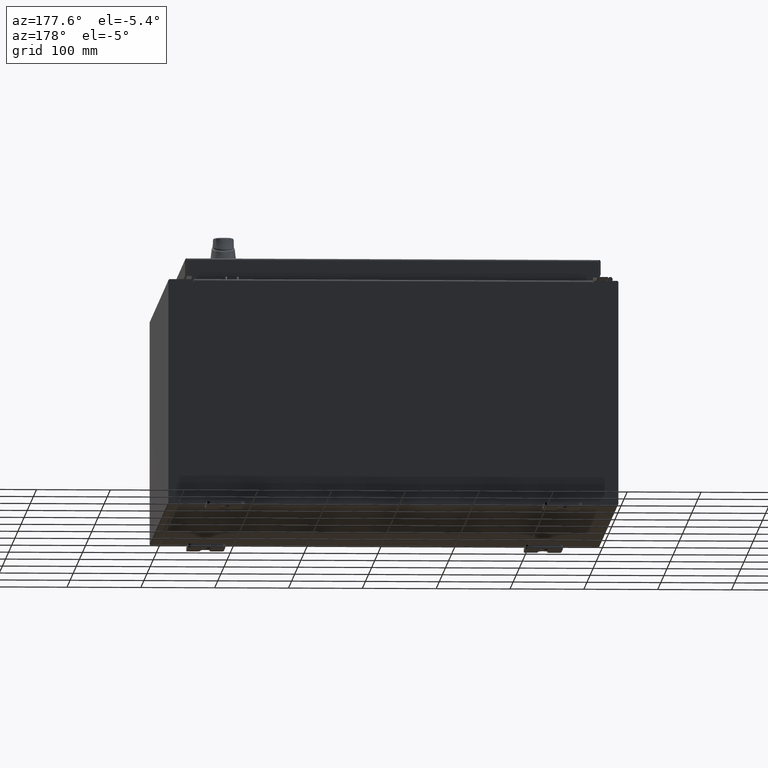
[diagram: clean part render]
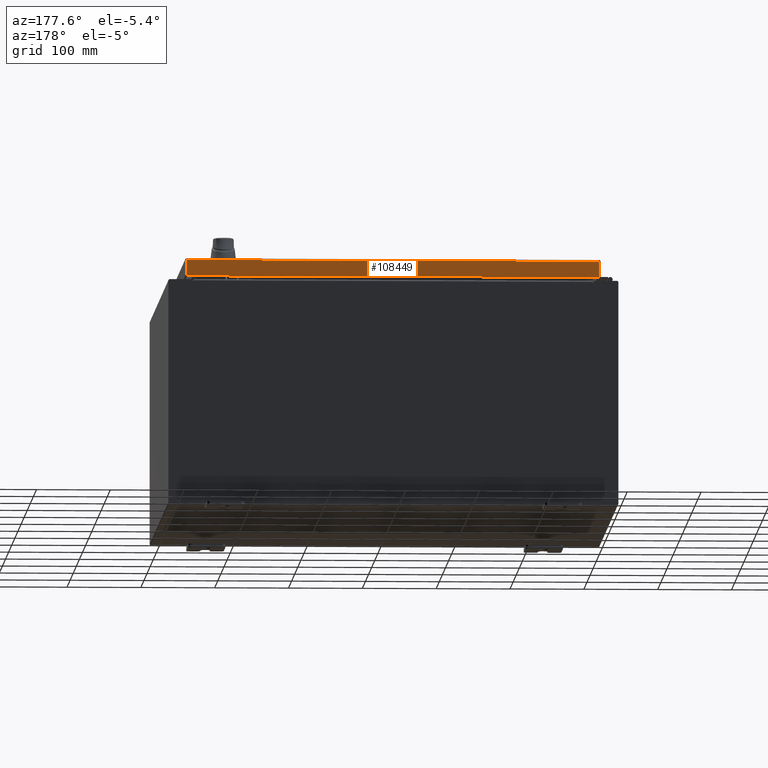
[diagram: same view with one face highlighted and labeled with its STEP entity id]
A machine part, auxiliary view. The second image highlights one B-rep face of the part: STEP entity #108449.
In plain terms, the highlighted planar face has unit normal (0, -1, -0).
Its self-contained STEP definition (entity closure, byte-faithful):
#3635 = EDGE_CURVE ( 'NONE', #80038, #33974, #96596, .T. ) ;
#5276 = ORIENTED_EDGE ( 'NONE', *, *, #104655, .F. ) ;
#15468 = LINE ( 'NONE', #107836, #18163 ) ;
#15914 = PLANE ( 'NONE',  #22983 ) ;
#18163 = VECTOR ( 'NONE', #18183, 39.37007874015748100 ) ;
#18183 = DIRECTION ( 'NONE',  ( -1.000000000000000000, -3.122488847327583000E-031, -7.817847125977018100E-046 ) ) ;
#20527 = ORIENTED_EDGE ( 'NONE', *, *, #83640, .T. ) ;
#22983 = AXIS2_PLACEMENT_3D ( 'NONE', #33481, #94803, #42305 ) ;
#24303 = VERTEX_POINT ( 'NONE', #78088 ) ;
#29559 = ORIENTED_EDGE ( 'NONE', *, *, #3635, .F. ) ;
#31333 = CARTESIAN_POINT ( 'NONE',  ( 10.98915786437626500, 11.09399999999999800, -0.08770000000000008300 ) ) ;
#31872 = CARTESIAN_POINT ( 'NONE',  ( -10.98915786437626900, 11.09399999999999900, -0.9377000000000025300 ) ) ;
#33481 = CARTESIAN_POINT ( 'NONE',  ( -3.464089127225218900E-030, 11.09399999999999800, 2.835548029954458900E-014 ) ) ;
#33974 = VERTEX_POINT ( 'NONE', #112228 ) ;
#37409 = DIRECTION ( 'NONE',  ( -0.0000000000000000000, 2.532419924601858200E-015, -1.000000000000000000 ) ) ;
#39016 = CARTESIAN_POINT ( 'NONE',  ( -11.07800000000000300, 11.09399999999999900, -0.9377000000000025300 ) ) ;
#42305 = DIRECTION ( 'NONE',  ( 0.0000000000000000000, 2.532419924601858200E-015, -1.000000000000000000 ) ) ;
#46235 = CARTESIAN_POINT ( 'NONE',  ( -10.98915786437626900, 11.09399999999999800, -0.07469999999999980800 ) ) ;
#48440 = VERTEX_POINT ( 'NONE', #31333 ) ;
#49325 = ORIENTED_EDGE ( 'NONE', *, *, #80388, .F. ) ;
#53135 = VECTOR ( 'NONE', #106770, 39.37007874015748100 ) ;
#54199 = CARTESIAN_POINT ( 'NONE',  ( 10.98915786437626500, 11.09399999999999800, 2.835548029954458900E-014 ) ) ;
#56598 = DIRECTION ( 'NONE',  ( 1.000000000000000000, -4.379057701015054300E-047, 1.233005954894504400E-016 ) ) ;
#56616 = EDGE_LOOP ( 'NONE', ( #5276, #20527, #29559, #49325 ) ) ;
#69854 = VECTOR ( 'NONE', #37409, 39.37007874015748100 ) ;
#76671 = FACE_OUTER_BOUND ( 'NONE', #56616, .T. ) ;
#78088 = CARTESIAN_POINT ( 'NONE',  ( -10.98915786437626900, 11.09399999999999800, -0.08770000000000008300 ) ) ;
#80038 = VERTEX_POINT ( 'NONE', #31872 ) ;
#80388 = EDGE_CURVE ( 'NONE', #24303, #80038, #84923, .T. ) ;
#83640 = EDGE_CURVE ( 'NONE', #48440, #33974, #99787, .T. ) ;
#84923 = LINE ( 'NONE', #46235, #69854 ) ;
#93890 = VECTOR ( 'NONE', #56598, 39.37007874015748100 ) ;
#94803 = DIRECTION ( 'NONE',  ( 3.122488847327582500E-031, -1.000000000000000000, -2.532419924601858200E-015 ) ) ;
#96596 = LINE ( 'NONE', #39016, #93890 ) ;
#99787 = LINE ( 'NONE', #54199, #53135 ) ;
#104655 = EDGE_CURVE ( 'NONE', #48440, #24303, #15468, .T. ) ;
#106770 = DIRECTION ( 'NONE',  ( 0.0000000000000000000, 2.532419924601858200E-015, -1.000000000000000000 ) ) ;
#107836 = CARTESIAN_POINT ( 'NONE',  ( -11.07800000000000300, 11.09399999999999800, -0.08770000000000008300 ) ) ;
#108449 = ADVANCED_FACE ( 'NONE', ( #76671 ), #15914, .F. ) ;
#112228 = CARTESIAN_POINT ( 'NONE',  ( 10.98915786437626500, 11.09399999999999900, -0.9376999999999997600 ) ) ;